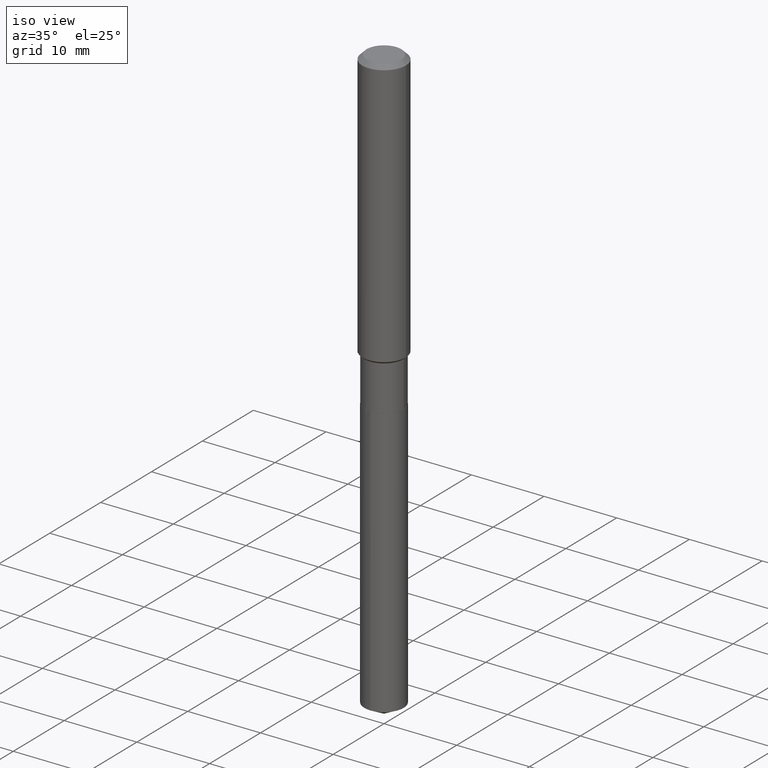
[diagram: clean part render]
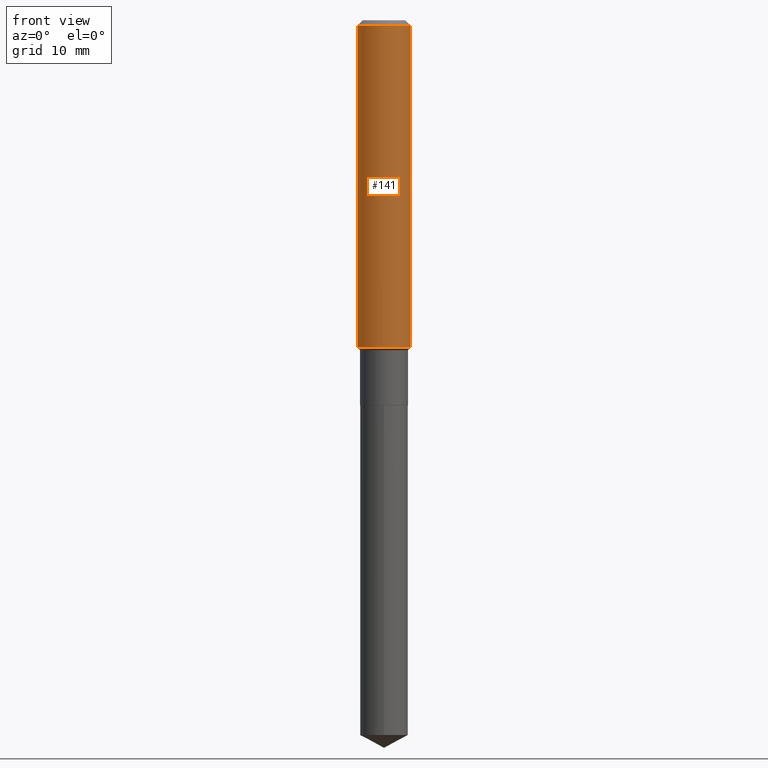
[diagram: tour spotlight — one face highlighted and labeled with its STEP entity id]
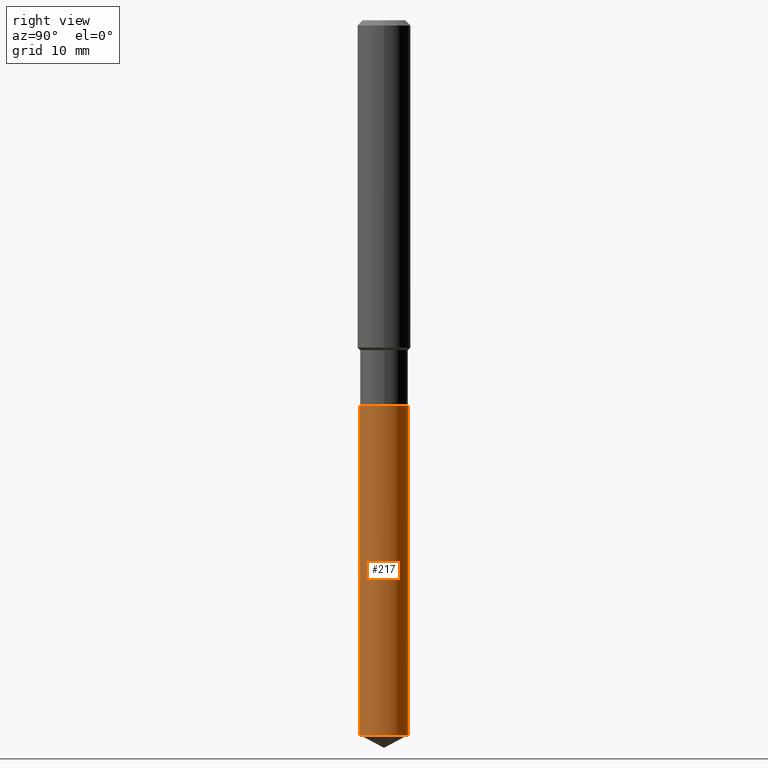
[diagram: tour spotlight — one face highlighted and labeled with its STEP entity id]
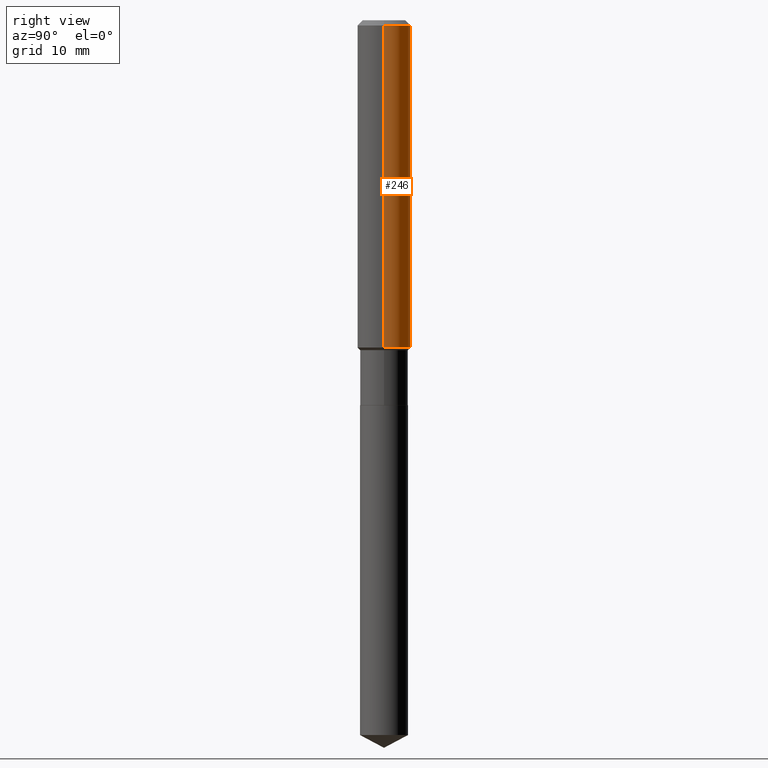
[diagram: tour spotlight — one face highlighted and labeled with its STEP entity id]
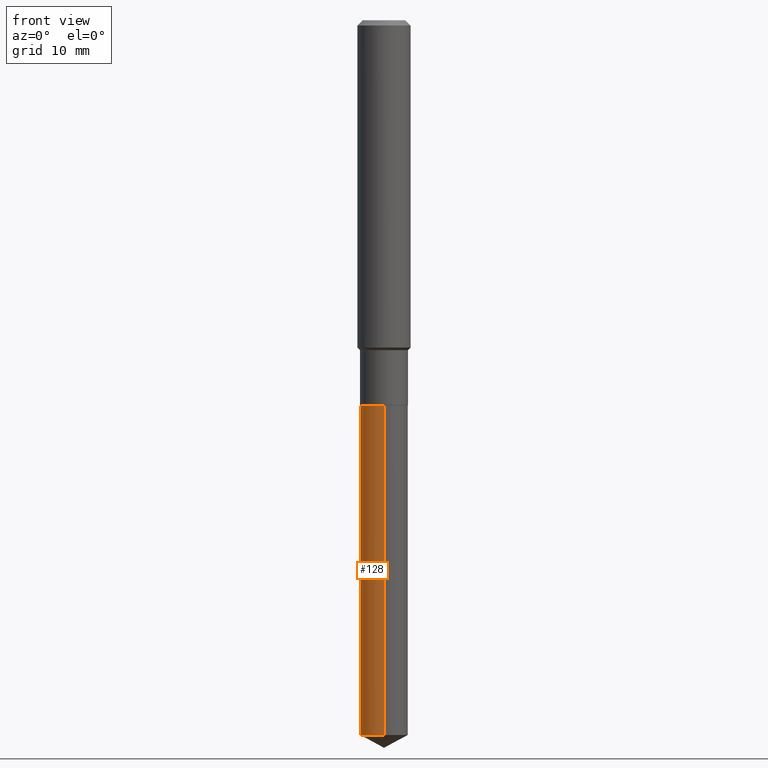
[diagram: tour spotlight — one face highlighted and labeled with its STEP entity id]
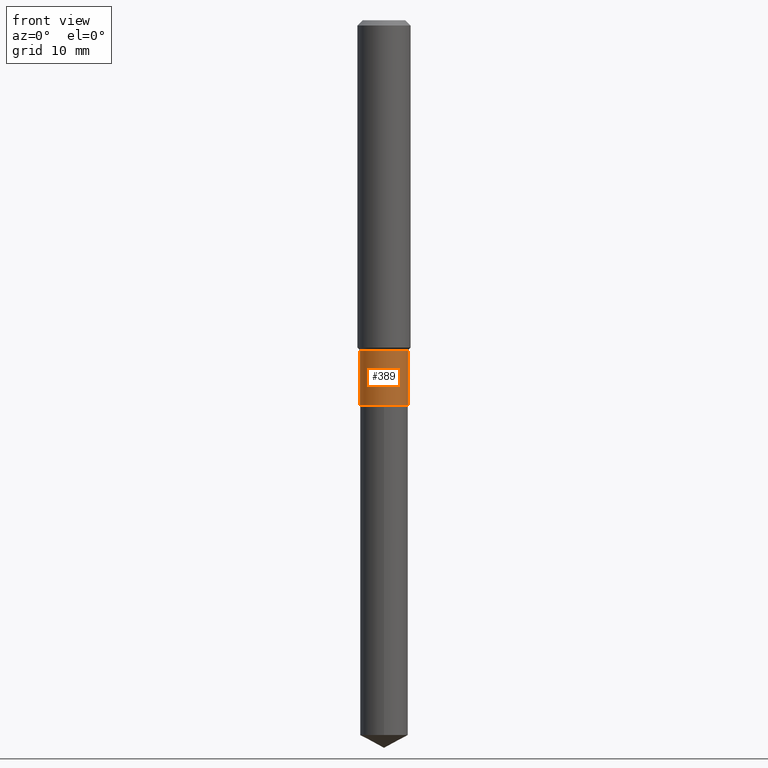
[diagram: tour spotlight — one face highlighted and labeled with its STEP entity id]
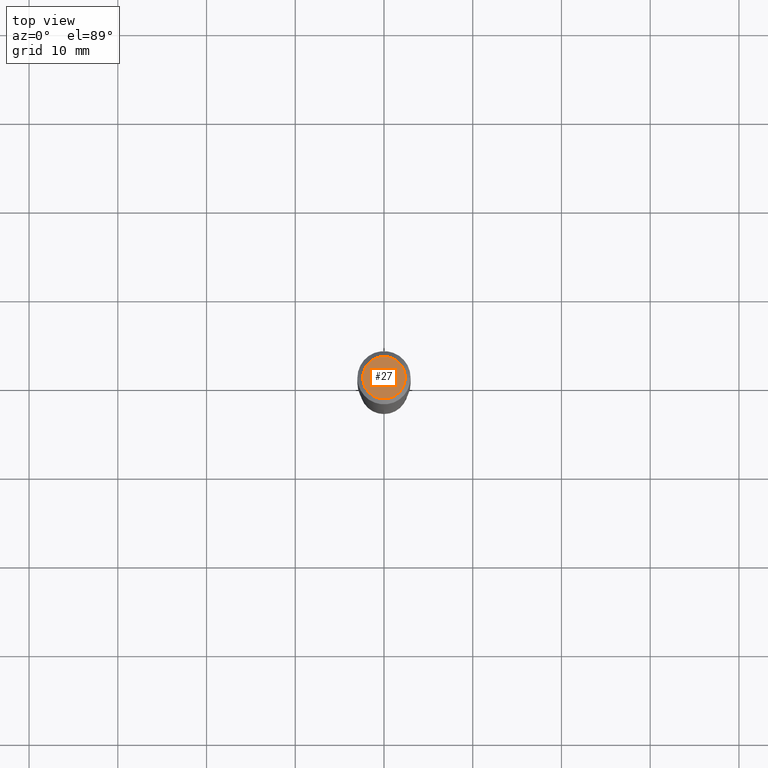
[diagram: tour spotlight — one face highlighted and labeled with its STEP entity id]
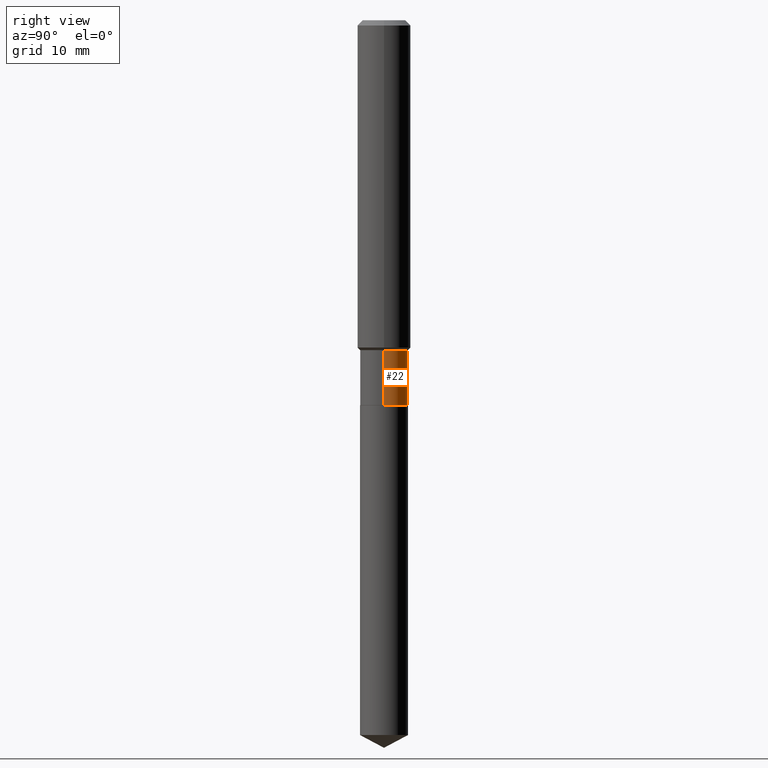
[diagram: tour spotlight — one face highlighted and labeled with its STEP entity id]
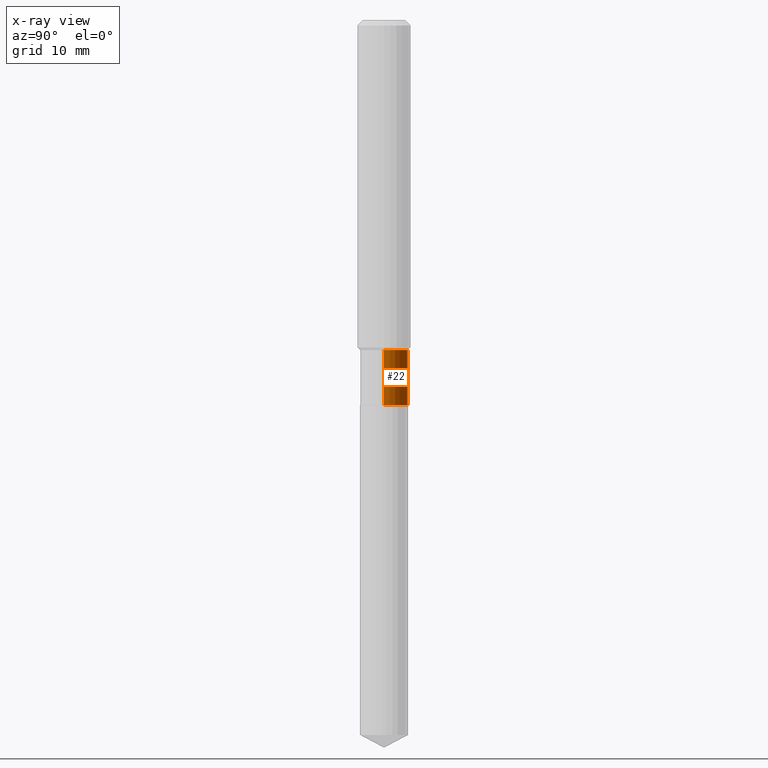
[diagram: x-ray of the same camera — body ghosted, this tour face saturated]
A machine part: a face-by-face anatomy tour. The part has 17 B-rep faces; the first image is the clean iso view, then the 7 largest visible faces are spotlighted one at a time (largest first), each with its STEP entity span.

Face 1 — front view, entity #141. In plain terms, the highlighted cylindrical surface (edge-blend (fillet) strip) has radius 2.9997 mm, axis along (-0, 0, 1).
Definition (entity closure, byte-faithful):
#9 = DIRECTION ( 'NONE',  ( -2.445468806185136597E-29, 3.491481338843145583E-15, 1.000000000000000000 ) ) ;
#17 = CARTESIAN_POINT ( 'NONE',  ( 3.551554347222674167E-29, -5.070678348401900425E-15, -1.452299999999999924 ) ) ;
#20 = CARTESIAN_POINT ( 'NONE',  ( 5.776197320209327532E-31, -8.246878922347559293E-17, -0.02362000000000014088 ) ) ;
#25 = CIRCLE ( 'NONE', #60, 0.1180999999999999966 ) ;
#34 = VERTEX_POINT ( 'NONE', #55 ) ;
#37 = CYLINDRICAL_SURFACE ( 'NONE', #202, 0.1181000000000000799 ) ;
#55 = CARTESIAN_POINT ( 'NONE',  ( -0.1180999999999999966, -1.737422597880008561E-15, -0.02362000000000014088 ) ) ;
#60 = AXIS2_PLACEMENT_3D ( 'NONE', #20, #169, #303 ) ;
#72 = ORIENTED_EDGE ( 'NONE', *, *, #326, .F. ) ;
#83 = EDGE_LOOP ( 'NONE', ( #72, #372, #152, #191 ) ) ;
#87 = LINE ( 'NONE', #162, #251 ) ;
#97 = CARTESIAN_POINT ( 'NONE',  ( 0.1180999999999999966, -9.071566814582237199E-16, -0.02362000000000014088 ) ) ;
#108 = DIRECTION ( 'NONE',  ( 1.000000000000000000, -6.982962677686266711E-15, 4.876176775795936353E-29 ) ) ;
#132 = LINE ( 'NONE', #387, #324 ) ;
#141 = ADVANCED_FACE ( 'NONE', ( #287 ), #37, .T. ) ;
#152 = ORIENTED_EDGE ( 'NONE', *, *, #227, .T. ) ;
#162 = CARTESIAN_POINT ( 'NONE',  ( -0.1181000000000000799, 8.391509709326788873E-16, -5.809262341591047988E-30 ) ) ;
#169 = DIRECTION ( 'NONE',  ( -2.445468806185136597E-29, 3.491481338843145583E-15, 1.000000000000000000 ) ) ;
#173 = CIRCLE ( 'NONE', #478, 0.1181000000000001632 ) ;
#191 = ORIENTED_EDGE ( 'NONE', *, *, #351, .F. ) ;
#202 = AXIS2_PLACEMENT_3D ( 'NONE', #341, #9, #108 ) ;
#227 = EDGE_CURVE ( 'NONE', #342, #480, #132, .T. ) ;
#236 = CARTESIAN_POINT ( 'NONE',  ( 0.1181000000000001632, -5.895366240636649477E-15, -1.452299999999999924 ) ) ;
#251 = VECTOR ( 'NONE', #439, 39.37007874015748143 ) ;
#266 = CARTESIAN_POINT ( 'NONE',  ( -0.1181000000000001632, -4.231527377469220651E-15, -1.452299999999999924 ) ) ;
#287 = FACE_OUTER_BOUND ( 'NONE', #83, .T. ) ;
#302 = VERTEX_POINT ( 'NONE', #266 ) ;
#303 = DIRECTION ( 'NONE',  ( 1.000000000000000000, -6.982962677686266711E-15, 0.000000000000000000 ) ) ;
#312 = EDGE_CURVE ( 'NONE', #302, #342, #173, .T. ) ;
#324 = VECTOR ( 'NONE', #396, 39.37007874015748143 ) ;
#326 = EDGE_CURVE ( 'NONE', #302, #34, #87, .T. ) ;
#341 = CARTESIAN_POINT ( 'NONE',  ( 0.000000000000000000, 0.000000000000000000, 0.000000000000000000 ) ) ;
#342 = VERTEX_POINT ( 'NONE', #236 ) ;
#351 = EDGE_CURVE ( 'NONE', #34, #480, #25, .T. ) ;
#372 = ORIENTED_EDGE ( 'NONE', *, *, #312, .T. ) ;
#387 = CARTESIAN_POINT ( 'NONE',  ( 0.1181000000000000799, -8.246878922347486570E-16, 5.758764772215004644E-30 ) ) ;
#396 = DIRECTION ( 'NONE',  ( -2.445468806185136877E-29, 3.491481338843145188E-15, 1.000000000000000000 ) ) ;
#430 = DIRECTION ( 'NONE',  ( 1.000000000000000000, -6.982962677686270655E-15, 0.000000000000000000 ) ) ;
#439 = DIRECTION ( 'NONE',  ( -2.445468806185136877E-29, 3.491481338843145188E-15, 1.000000000000000000 ) ) ;
#473 = DIRECTION ( 'NONE',  ( -2.445468806185136597E-29, 3.491481338843145583E-15, 1.000000000000000000 ) ) ;
#478 = AXIS2_PLACEMENT_3D ( 'NONE', #17, #473, #430 ) ;
#480 = VERTEX_POINT ( 'NONE', #97 ) ;

Face 2 — right view, entity #217. In plain terms, the highlighted cylindrical surface (edge-blend (fillet) strip) has radius 2.7 mm, axis along (-0, 0, 1).
Definition (entity closure, byte-faithful):
#11 = CARTESIAN_POINT ( 'NONE',  ( 4.178328002247924925E-29, -5.965545015547399442E-15, -1.708600000000000119 ) ) ;
#28 = DIRECTION ( 'NONE',  ( -6.982962677686265922E-15, -1.000000000000000000, 5.139883337091746339E-15 ) ) ;
#36 = AXIS2_PLACEMENT_3D ( 'NONE', #479, #247, #362 ) ;
#64 = CARTESIAN_POINT ( 'NONE',  ( 7.756473442508537005E-29, -1.107422804835909008E-14, -3.171779287414385529 ) ) ;
#68 = DIRECTION ( 'NONE',  ( -2.445459330266783029E-29, 3.491494908897563498E-15, 1.000000000000000000 ) ) ;
#74 = AXIS2_PLACEMENT_3D ( 'NONE', #11, #204, #385 ) ;
#77 = ORIENTED_EDGE ( 'NONE', *, *, #206, .F. ) ;
#92 = DIRECTION ( 'NONE',  ( -2.445459330266783029E-29, 3.491494908897563498E-15, 1.000000000000000000 ) ) ;
#117 = EDGE_LOOP ( 'NONE', ( #187, #426, #379, #77 ) ) ;
#137 = LINE ( 'NONE', #279, #252 ) ;
#168 = VERTEX_POINT ( 'NONE', #471 ) ;
#187 = ORIENTED_EDGE ( 'NONE', *, *, #383, .T. ) ;
#204 = DIRECTION ( 'NONE',  ( -2.445459330266783309E-29, 3.491494908897563498E-15, 1.000000000000000000 ) ) ;
#206 = EDGE_CURVE ( 'NONE', #344, #256, #305, .T. ) ;
#217 = ADVANCED_FACE ( 'NONE', ( #354 ), #356, .T. ) ;
#221 = AXIS2_PLACEMENT_3D ( 'NONE', #64, #483, #28 ) ;
#237 = VERTEX_POINT ( 'NONE', #272 ) ;
#247 = DIRECTION ( 'NONE',  ( -2.445459330266783309E-29, 3.491494908897563498E-15, 1.000000000000000000 ) ) ;
#252 = VECTOR ( 'NONE', #68, 39.37007874015748143 ) ;
#256 = VERTEX_POINT ( 'NONE', #393 ) ;
#272 = CARTESIAN_POINT ( 'NONE',  ( 7.553069281130638457E-16, 0.1062999999999889034, -3.171779287414385973 ) ) ;
#279 = CARTESIAN_POINT ( 'NONE',  ( 7.553069281130281498E-16, 0.1062999999999940520, -1.708600000000000563 ) ) ;
#305 = LINE ( 'NONE', #475, #485 ) ;
#307 = CIRCLE ( 'NONE', #221, 0.1063000000000000056 ) ;
#344 = VERTEX_POINT ( 'NONE', #435 ) ;
#354 = FACE_OUTER_BOUND ( 'NONE', #117, .T. ) ;
#356 = CYLINDRICAL_SURFACE ( 'NONE', #74, 0.1063000000000000056 ) ;
#362 = DIRECTION ( 'NONE',  ( -6.982962677686265922E-15, -1.000000000000000000, 2.569941668545873170E-15 ) ) ;
#370 = EDGE_CURVE ( 'NONE', #256, #168, #401, .T. ) ;
#379 = ORIENTED_EDGE ( 'NONE', *, *, #370, .F. ) ;
#383 = EDGE_CURVE ( 'NONE', #344, #237, #307, .T. ) ;
#385 = DIRECTION ( 'NONE',  ( -6.982962677686265922E-15, -1.000000000000000000, 2.569941668545873170E-15 ) ) ;
#393 = CARTESIAN_POINT ( 'NONE',  ( -7.422889326380084277E-16, -0.1063000000000059592, -1.708599999999999897 ) ) ;
#401 = CIRCLE ( 'NONE', #36, 0.1063000000000000056 ) ;
#426 = ORIENTED_EDGE ( 'NONE', *, *, #447, .T. ) ;
#435 = CARTESIAN_POINT ( 'NONE',  ( -7.422889326379726331E-16, -0.1063000000000110662, -3.171779287414385085 ) ) ;
#447 = EDGE_CURVE ( 'NONE', #237, #168, #137, .T. ) ;
#471 = CARTESIAN_POINT ( 'NONE',  ( 7.553069281130643387E-16, 0.1062999999999940659, -1.708600000000000563 ) ) ;
#475 = CARTESIAN_POINT ( 'NONE',  ( -7.422889326380084277E-16, -0.1063000000000059592, -1.708599999999999897 ) ) ;
#479 = CARTESIAN_POINT ( 'NONE',  ( 4.178328002247924925E-29, -5.965545015547399442E-15, -1.708600000000000119 ) ) ;
#483 = DIRECTION ( 'NONE',  ( -2.445459330266783309E-29, 3.491494908897563498E-15, 1.000000000000000000 ) ) ;
#485 = VECTOR ( 'NONE', #92, 39.37007874015748143 ) ;

Face 3 — right view, entity #246. In plain terms, the highlighted cylindrical surface (edge-blend (fillet) strip) has radius 2.9997 mm, axis along (-0, 0, 1).
Definition (entity closure, byte-faithful):
#2 = ORIENTED_EDGE ( 'NONE', *, *, #326, .T. ) ;
#14 = CARTESIAN_POINT ( 'NONE',  ( 3.551554347222674167E-29, -5.070678348401900425E-15, -1.452299999999999924 ) ) ;
#24 = DIRECTION ( 'NONE',  ( 1.000000000000000000, -6.982962677686266711E-15, 0.000000000000000000 ) ) ;
#29 = CIRCLE ( 'NONE', #273, 0.1180999999999999966 ) ;
#34 = VERTEX_POINT ( 'NONE', #55 ) ;
#54 = DIRECTION ( 'NONE',  ( -2.445468806185136597E-29, 3.491481338843145583E-15, 1.000000000000000000 ) ) ;
#55 = CARTESIAN_POINT ( 'NONE',  ( -0.1180999999999999966, -1.737422597880008561E-15, -0.02362000000000014088 ) ) ;
#75 = EDGE_CURVE ( 'NONE', #480, #34, #29, .T. ) ;
#85 = CIRCLE ( 'NONE', #331, 0.1181000000000001632 ) ;
#87 = LINE ( 'NONE', #162, #251 ) ;
#88 = DIRECTION ( 'NONE',  ( -2.445468806185136597E-29, 3.491481338843145583E-15, 1.000000000000000000 ) ) ;
#97 = CARTESIAN_POINT ( 'NONE',  ( 0.1180999999999999966, -9.071566814582237199E-16, -0.02362000000000014088 ) ) ;
#116 = AXIS2_PLACEMENT_3D ( 'NONE', #313, #390, #232 ) ;
#120 = EDGE_LOOP ( 'NONE', ( #455, #2, #474, #420 ) ) ;
#123 = DIRECTION ( 'NONE',  ( 1.000000000000000000, -6.982962677686270655E-15, 0.000000000000000000 ) ) ;
#132 = LINE ( 'NONE', #387, #324 ) ;
#162 = CARTESIAN_POINT ( 'NONE',  ( -0.1181000000000000799, 8.391509709326788873E-16, -5.809262341591047988E-30 ) ) ;
#196 = FACE_OUTER_BOUND ( 'NONE', #120, .T. ) ;
#227 = EDGE_CURVE ( 'NONE', #342, #480, #132, .T. ) ;
#232 = DIRECTION ( 'NONE',  ( 1.000000000000000000, -6.982962677686266711E-15, 4.876176775795936353E-29 ) ) ;
#236 = CARTESIAN_POINT ( 'NONE',  ( 0.1181000000000001632, -5.895366240636649477E-15, -1.452299999999999924 ) ) ;
#238 = CYLINDRICAL_SURFACE ( 'NONE', #116, 0.1181000000000000799 ) ;
#246 = ADVANCED_FACE ( 'NONE', ( #196 ), #238, .T. ) ;
#251 = VECTOR ( 'NONE', #439, 39.37007874015748143 ) ;
#266 = CARTESIAN_POINT ( 'NONE',  ( -0.1181000000000001632, -4.231527377469220651E-15, -1.452299999999999924 ) ) ;
#273 = AXIS2_PLACEMENT_3D ( 'NONE', #397, #88, #24 ) ;
#295 = EDGE_CURVE ( 'NONE', #342, #302, #85, .T. ) ;
#302 = VERTEX_POINT ( 'NONE', #266 ) ;
#313 = CARTESIAN_POINT ( 'NONE',  ( 0.000000000000000000, 0.000000000000000000, 0.000000000000000000 ) ) ;
#324 = VECTOR ( 'NONE', #396, 39.37007874015748143 ) ;
#326 = EDGE_CURVE ( 'NONE', #302, #34, #87, .T. ) ;
#331 = AXIS2_PLACEMENT_3D ( 'NONE', #14, #54, #123 ) ;
#342 = VERTEX_POINT ( 'NONE', #236 ) ;
#387 = CARTESIAN_POINT ( 'NONE',  ( 0.1181000000000000799, -8.246878922347486570E-16, 5.758764772215004644E-30 ) ) ;
#390 = DIRECTION ( 'NONE',  ( -2.445468806185136597E-29, 3.491481338843145583E-15, 1.000000000000000000 ) ) ;
#396 = DIRECTION ( 'NONE',  ( -2.445468806185136877E-29, 3.491481338843145188E-15, 1.000000000000000000 ) ) ;
#397 = CARTESIAN_POINT ( 'NONE',  ( 5.776197320209327532E-31, -8.246878922347559293E-17, -0.02362000000000014088 ) ) ;
#420 = ORIENTED_EDGE ( 'NONE', *, *, #227, .F. ) ;
#439 = DIRECTION ( 'NONE',  ( -2.445468806185136877E-29, 3.491481338843145188E-15, 1.000000000000000000 ) ) ;
#455 = ORIENTED_EDGE ( 'NONE', *, *, #295, .T. ) ;
#474 = ORIENTED_EDGE ( 'NONE', *, *, #75, .F. ) ;
#480 = VERTEX_POINT ( 'NONE', #97 ) ;

Face 4 — front view, entity #128. In plain terms, the highlighted cylindrical surface (edge-blend (fillet) strip) has radius 2.7 mm, axis along (-0, 0, 1).
Definition (entity closure, byte-faithful):
#44 = DIRECTION ( 'NONE',  ( -6.982962677686265922E-15, -1.000000000000000000, 2.569941668545873170E-15 ) ) ;
#46 = EDGE_CURVE ( 'NONE', #237, #344, #437, .T. ) ;
#56 = DIRECTION ( 'NONE',  ( -2.445459330266783309E-29, 3.491494908897563498E-15, 1.000000000000000000 ) ) ;
#66 = AXIS2_PLACEMENT_3D ( 'NONE', #425, #380, #44 ) ;
#68 = DIRECTION ( 'NONE',  ( -2.445459330266783029E-29, 3.491494908897563498E-15, 1.000000000000000000 ) ) ;
#82 = CYLINDRICAL_SURFACE ( 'NONE', #66, 0.1063000000000000056 ) ;
#90 = DIRECTION ( 'NONE',  ( -6.982962677686265922E-15, -1.000000000000000000, 2.569941668545873170E-15 ) ) ;
#92 = DIRECTION ( 'NONE',  ( -2.445459330266783029E-29, 3.491494908897563498E-15, 1.000000000000000000 ) ) ;
#128 = ADVANCED_FACE ( 'NONE', ( #291 ), #82, .T. ) ;
#133 = DIRECTION ( 'NONE',  ( -6.982962677686265922E-15, -1.000000000000000000, 5.139883337091746339E-15 ) ) ;
#137 = LINE ( 'NONE', #279, #252 ) ;
#158 = CARTESIAN_POINT ( 'NONE',  ( 4.178328002247924925E-29, -5.965545015547399442E-15, -1.708600000000000119 ) ) ;
#168 = VERTEX_POINT ( 'NONE', #471 ) ;
#206 = EDGE_CURVE ( 'NONE', #344, #256, #305, .T. ) ;
#208 = ORIENTED_EDGE ( 'NONE', *, *, #46, .T. ) ;
#215 = AXIS2_PLACEMENT_3D ( 'NONE', #158, #56, #90 ) ;
#237 = VERTEX_POINT ( 'NONE', #272 ) ;
#252 = VECTOR ( 'NONE', #68, 39.37007874015748143 ) ;
#256 = VERTEX_POINT ( 'NONE', #393 ) ;
#272 = CARTESIAN_POINT ( 'NONE',  ( 7.553069281130638457E-16, 0.1062999999999889034, -3.171779287414385973 ) ) ;
#279 = CARTESIAN_POINT ( 'NONE',  ( 7.553069281130281498E-16, 0.1062999999999940520, -1.708600000000000563 ) ) ;
#280 = EDGE_CURVE ( 'NONE', #168, #256, #444, .T. ) ;
#291 = FACE_OUTER_BOUND ( 'NONE', #382, .T. ) ;
#292 = ORIENTED_EDGE ( 'NONE', *, *, #447, .F. ) ;
#305 = LINE ( 'NONE', #475, #485 ) ;
#314 = CARTESIAN_POINT ( 'NONE',  ( 7.756473442508537005E-29, -1.107422804835909008E-14, -3.171779287414385529 ) ) ;
#317 = AXIS2_PLACEMENT_3D ( 'NONE', #314, #357, #133 ) ;
#335 = ORIENTED_EDGE ( 'NONE', *, *, #280, .F. ) ;
#344 = VERTEX_POINT ( 'NONE', #435 ) ;
#357 = DIRECTION ( 'NONE',  ( -2.445459330266783309E-29, 3.491494908897563498E-15, 1.000000000000000000 ) ) ;
#380 = DIRECTION ( 'NONE',  ( -2.445459330266783309E-29, 3.491494908897563498E-15, 1.000000000000000000 ) ) ;
#382 = EDGE_LOOP ( 'NONE', ( #292, #208, #431, #335 ) ) ;
#393 = CARTESIAN_POINT ( 'NONE',  ( -7.422889326380084277E-16, -0.1063000000000059592, -1.708599999999999897 ) ) ;
#425 = CARTESIAN_POINT ( 'NONE',  ( 4.178328002247924925E-29, -5.965545015547399442E-15, -1.708600000000000119 ) ) ;
#431 = ORIENTED_EDGE ( 'NONE', *, *, #206, .T. ) ;
#435 = CARTESIAN_POINT ( 'NONE',  ( -7.422889326379726331E-16, -0.1063000000000110662, -3.171779287414385085 ) ) ;
#437 = CIRCLE ( 'NONE', #317, 0.1063000000000000056 ) ;
#444 = CIRCLE ( 'NONE', #215, 0.1063000000000000056 ) ;
#447 = EDGE_CURVE ( 'NONE', #237, #168, #137, .T. ) ;
#471 = CARTESIAN_POINT ( 'NONE',  ( 7.553069281130643387E-16, 0.1062999999999940659, -1.708600000000000563 ) ) ;
#475 = CARTESIAN_POINT ( 'NONE',  ( -7.422889326380084277E-16, -0.1063000000000059592, -1.708599999999999897 ) ) ;
#485 = VECTOR ( 'NONE', #92, 39.37007874015748143 ) ;

Face 5 — front view, entity #389. In plain terms, the highlighted cylindrical surface (edge-blend (fillet) strip) has radius 2.7 mm, axis along (-0, 0, 1).
Definition (entity closure, byte-faithful):
#23 = CARTESIAN_POINT ( 'NONE',  ( -0.1063000000000000056, -4.782531623426127570E-15, -1.708100000000000174 ) ) ;
#38 = VERTEX_POINT ( 'NONE', #355 ) ;
#41 = VERTEX_POINT ( 'NONE', #170 ) ;
#51 = DIRECTION ( 'NONE',  ( -2.445468806185136597E-29, 3.491481338843145583E-15, 1.000000000000000000 ) ) ;
#57 = ORIENTED_EDGE ( 'NONE', *, *, #339, .F. ) ;
#63 = DIRECTION ( 'NONE',  ( 1.000000000000000000, -6.982962677686267499E-15, 4.876176775795935232E-29 ) ) ;
#107 = CIRCLE ( 'NONE', #164, 0.1062999999999999640 ) ;
#110 = VERTEX_POINT ( 'NONE', #404 ) ;
#112 = EDGE_CURVE ( 'NONE', #449, #41, #464, .T. ) ;
#119 = CARTESIAN_POINT ( 'NONE',  ( -0.1062999999999999917, 7.553069281129864387E-16, -5.228828000940964357E-30 ) ) ;
#121 = CARTESIAN_POINT ( 'NONE',  ( 3.580410879135658789E-29, -5.111877828200250276E-15, -1.464100000000000179 ) ) ;
#134 = VECTOR ( 'NONE', #468, 39.37007874015748143 ) ;
#138 = FACE_OUTER_BOUND ( 'NONE', #150, .T. ) ;
#150 = EDGE_LOOP ( 'NONE', ( #220, #469, #203, #57 ) ) ;
#153 = EDGE_CURVE ( 'NONE', #449, #38, #419, .T. ) ;
#160 = CARTESIAN_POINT ( 'NONE',  ( 0.1062999999999999917, -7.422889326380501387E-16, 5.183375912671078649E-30 ) ) ;
#164 = AXIS2_PLACEMENT_3D ( 'NONE', #121, #51, #207 ) ;
#170 = CARTESIAN_POINT ( 'NONE',  ( -0.1062999999999999640, -4.782531623426127570E-15, -1.464100000000000179 ) ) ;
#176 = DIRECTION ( 'NONE',  ( -2.445468806185136597E-29, 3.491481338843145583E-15, 1.000000000000000000 ) ) ;
#203 = ORIENTED_EDGE ( 'NONE', *, *, #209, .T. ) ;
#207 = DIRECTION ( 'NONE',  ( 1.000000000000000000, -6.982962677686263555E-15, 0.000000000000000000 ) ) ;
#209 = EDGE_CURVE ( 'NONE', #38, #110, #427, .T. ) ;
#216 = CYLINDRICAL_SURFACE ( 'NONE', #275, 0.1062999999999999917 ) ;
#220 = ORIENTED_EDGE ( 'NONE', *, *, #112, .F. ) ;
#249 = CARTESIAN_POINT ( 'NONE',  ( 0.000000000000000000, 0.000000000000000000, 0.000000000000000000 ) ) ;
#254 = CARTESIAN_POINT ( 'NONE',  ( 4.177105267844832684E-29, -5.963799274877977939E-15, -1.708100000000000174 ) ) ;
#275 = AXIS2_PLACEMENT_3D ( 'NONE', #249, #176, #63 ) ;
#299 = AXIS2_PLACEMENT_3D ( 'NONE', #254, #413, #332 ) ;
#332 = DIRECTION ( 'NONE',  ( 1.000000000000000000, -6.982962677686269077E-15, 0.000000000000000000 ) ) ;
#339 = EDGE_CURVE ( 'NONE', #41, #110, #107, .T. ) ;
#348 = VECTOR ( 'NONE', #416, 39.37007874015748143 ) ;
#355 = CARTESIAN_POINT ( 'NONE',  ( 0.1063000000000000056, -6.706088207516028077E-15, -1.708100000000000174 ) ) ;
#389 = ADVANCED_FACE ( 'NONE', ( #138 ), #216, .T. ) ;
#404 = CARTESIAN_POINT ( 'NONE',  ( 0.1062999999999999640, -5.854166760838299626E-15, -1.464100000000000179 ) ) ;
#413 = DIRECTION ( 'NONE',  ( -2.445468806185136597E-29, 3.491481338843145583E-15, 1.000000000000000000 ) ) ;
#416 = DIRECTION ( 'NONE',  ( -2.445468806185136877E-29, 3.491481338843145188E-15, 1.000000000000000000 ) ) ;
#419 = CIRCLE ( 'NONE', #299, 0.1063000000000000056 ) ;
#427 = LINE ( 'NONE', #160, #134 ) ;
#449 = VERTEX_POINT ( 'NONE', #23 ) ;
#464 = LINE ( 'NONE', #119, #348 ) ;
#468 = DIRECTION ( 'NONE',  ( -2.445468806185136877E-29, 3.491481338843145188E-15, 1.000000000000000000 ) ) ;
#469 = ORIENTED_EDGE ( 'NONE', *, *, #153, .T. ) ;

Face 6 — top view, entity #27. In plain terms, the highlighted planar face has unit normal (0, -0, -1).
Definition (entity closure, byte-faithful):
#27 = ADVANCED_FACE ( 'NONE', ( #233 ), #267, .F. ) ;
#30 = CIRCLE ( 'NONE', #53, 0.09447999999999998066 ) ;
#53 = AXIS2_PLACEMENT_3D ( 'NONE', #181, #248, #135 ) ;
#124 = DIRECTION ( 'NONE',  ( 2.438088387897960049E-29, -3.491481338843145188E-15, -1.000000000000000000 ) ) ;
#135 = DIRECTION ( 'NONE',  ( 1.000000000000000000, -6.982962677686267499E-15, 4.875432709231658792E-29 ) ) ;
#163 = AXIS2_PLACEMENT_3D ( 'NONE', #476, #124, #395 ) ;
#181 = CARTESIAN_POINT ( 'NONE',  ( 4.716267017698007905E-46, -6.733579360998555036E-32, -1.928573779297252010E-17 ) ) ;
#212 = DIRECTION ( 'NONE',  ( -2.445468806185136597E-29, 3.491481338843145583E-15, 1.000000000000000000 ) ) ;
#233 = FACE_OUTER_BOUND ( 'NONE', #428, .T. ) ;
#245 = AXIS2_PLACEMENT_3D ( 'NONE', #360, #212, #283 ) ;
#248 = DIRECTION ( 'NONE',  ( -2.445468806185136597E-29, 3.491481338843145583E-15, 1.000000000000000000 ) ) ;
#267 = PLANE ( 'NONE',  #163 ) ;
#283 = DIRECTION ( 'NONE',  ( 1.000000000000000000, -6.982962677686267499E-15, 4.875432709231658792E-29 ) ) ;
#360 = CARTESIAN_POINT ( 'NONE',  ( 4.716267017698007905E-46, -6.733579360998555036E-32, -1.928573779297252010E-17 ) ) ;
#363 = CARTESIAN_POINT ( 'NONE',  ( -0.09447999999999998066, 7.009847083995354710E-16, -1.928573779297727792E-17 ) ) ;
#369 = EDGE_CURVE ( 'NONE', #457, #440, #489, .T. ) ;
#395 = DIRECTION ( 'NONE',  ( -1.000000000000000000, 6.982962677686265922E-15, -4.876176775795935793E-29 ) ) ;
#402 = ORIENTED_EDGE ( 'NONE', *, *, #369, .T. ) ;
#428 = EDGE_LOOP ( 'NONE', ( #467, #402 ) ) ;
#438 = EDGE_CURVE ( 'NONE', #440, #457, #30, .T. ) ;
#440 = VERTEX_POINT ( 'NONE', #363 ) ;
#457 = VERTEX_POINT ( 'NONE', #486 ) ;
#467 = ORIENTED_EDGE ( 'NONE', *, *, #438, .T. ) ;
#476 = CARTESIAN_POINT ( 'NONE',  ( 2.358133508849003952E-46, -3.366789680499277518E-32, -9.642868896486260050E-18 ) ) ;
#486 = CARTESIAN_POINT ( 'NONE',  ( 0.09447999999999998066, -7.704367267948738690E-16, -1.928573779296752193E-17 ) ) ;
#489 = CIRCLE ( 'NONE', #245, 0.09447999999999998066 ) ;

Face 7 — right view, entity #22. An x-ray twin of the same camera follows (body ghosted, this face saturated) — the face is partly hidden behind the body. In plain terms, the highlighted cylindrical surface (edge-blend (fillet) strip) has radius 2.7 mm, axis along (-0, 0, 1).
Definition (entity closure, byte-faithful):
#10 = ORIENTED_EDGE ( 'NONE', *, *, #112, .T. ) ;
#15 = DIRECTION ( 'NONE',  ( -2.445468806185136597E-29, 3.491481338843145583E-15, 1.000000000000000000 ) ) ;
#21 = CARTESIAN_POINT ( 'NONE',  ( 4.177105267844832684E-29, -5.963799274877977939E-15, -1.708100000000000174 ) ) ;
#22 = ADVANCED_FACE ( 'NONE', ( #205 ), #271, .T. ) ;
#23 = CARTESIAN_POINT ( 'NONE',  ( -0.1063000000000000056, -4.782531623426127570E-15, -1.708100000000000174 ) ) ;
#38 = VERTEX_POINT ( 'NONE', #355 ) ;
#39 = EDGE_CURVE ( 'NONE', #38, #449, #288, .T. ) ;
#41 = VERTEX_POINT ( 'NONE', #170 ) ;
#84 = DIRECTION ( 'NONE',  ( -2.445468806185136597E-29, 3.491481338843145583E-15, 1.000000000000000000 ) ) ;
#93 = DIRECTION ( 'NONE',  ( 1.000000000000000000, -6.982962677686267499E-15, 4.876176775795935232E-29 ) ) ;
#110 = VERTEX_POINT ( 'NONE', #404 ) ;
#112 = EDGE_CURVE ( 'NONE', #449, #41, #464, .T. ) ;
#119 = CARTESIAN_POINT ( 'NONE',  ( -0.1062999999999999917, 7.553069281129864387E-16, -5.228828000940964357E-30 ) ) ;
#134 = VECTOR ( 'NONE', #468, 39.37007874015748143 ) ;
#136 = ORIENTED_EDGE ( 'NONE', *, *, #39, .T. ) ;
#154 = AXIS2_PLACEMENT_3D ( 'NONE', #436, #278, #93 ) ;
#160 = CARTESIAN_POINT ( 'NONE',  ( 0.1062999999999999917, -7.422889326380501387E-16, 5.183375912671078649E-30 ) ) ;
#170 = CARTESIAN_POINT ( 'NONE',  ( -0.1062999999999999640, -4.782531623426127570E-15, -1.464100000000000179 ) ) ;
#177 = DIRECTION ( 'NONE',  ( 1.000000000000000000, -6.982962677686263555E-15, 0.000000000000000000 ) ) ;
#178 = AXIS2_PLACEMENT_3D ( 'NONE', #21, #15, #309 ) ;
#205 = FACE_OUTER_BOUND ( 'NONE', #352, .T. ) ;
#209 = EDGE_CURVE ( 'NONE', #38, #110, #427, .T. ) ;
#235 = ORIENTED_EDGE ( 'NONE', *, *, #209, .F. ) ;
#264 = CARTESIAN_POINT ( 'NONE',  ( 3.580410879135658789E-29, -5.111877828200250276E-15, -1.464100000000000179 ) ) ;
#271 = CYLINDRICAL_SURFACE ( 'NONE', #154, 0.1062999999999999917 ) ;
#278 = DIRECTION ( 'NONE',  ( -2.445468806185136597E-29, 3.491481338843145583E-15, 1.000000000000000000 ) ) ;
#288 = CIRCLE ( 'NONE', #178, 0.1063000000000000056 ) ;
#289 = CIRCLE ( 'NONE', #359, 0.1062999999999999640 ) ;
#309 = DIRECTION ( 'NONE',  ( 1.000000000000000000, -6.982962677686269077E-15, 0.000000000000000000 ) ) ;
#348 = VECTOR ( 'NONE', #416, 39.37007874015748143 ) ;
#352 = EDGE_LOOP ( 'NONE', ( #136, #10, #368, #235 ) ) ;
#353 = EDGE_CURVE ( 'NONE', #110, #41, #289, .T. ) ;
#355 = CARTESIAN_POINT ( 'NONE',  ( 0.1063000000000000056, -6.706088207516028077E-15, -1.708100000000000174 ) ) ;
#359 = AXIS2_PLACEMENT_3D ( 'NONE', #264, #84, #177 ) ;
#368 = ORIENTED_EDGE ( 'NONE', *, *, #353, .F. ) ;
#404 = CARTESIAN_POINT ( 'NONE',  ( 0.1062999999999999640, -5.854166760838299626E-15, -1.464100000000000179 ) ) ;
#416 = DIRECTION ( 'NONE',  ( -2.445468806185136877E-29, 3.491481338843145188E-15, 1.000000000000000000 ) ) ;
#427 = LINE ( 'NONE', #160, #134 ) ;
#436 = CARTESIAN_POINT ( 'NONE',  ( 0.000000000000000000, 0.000000000000000000, 0.000000000000000000 ) ) ;
#449 = VERTEX_POINT ( 'NONE', #23 ) ;
#464 = LINE ( 'NONE', #119, #348 ) ;
#468 = DIRECTION ( 'NONE',  ( -2.445468806185136877E-29, 3.491481338843145188E-15, 1.000000000000000000 ) ) ;